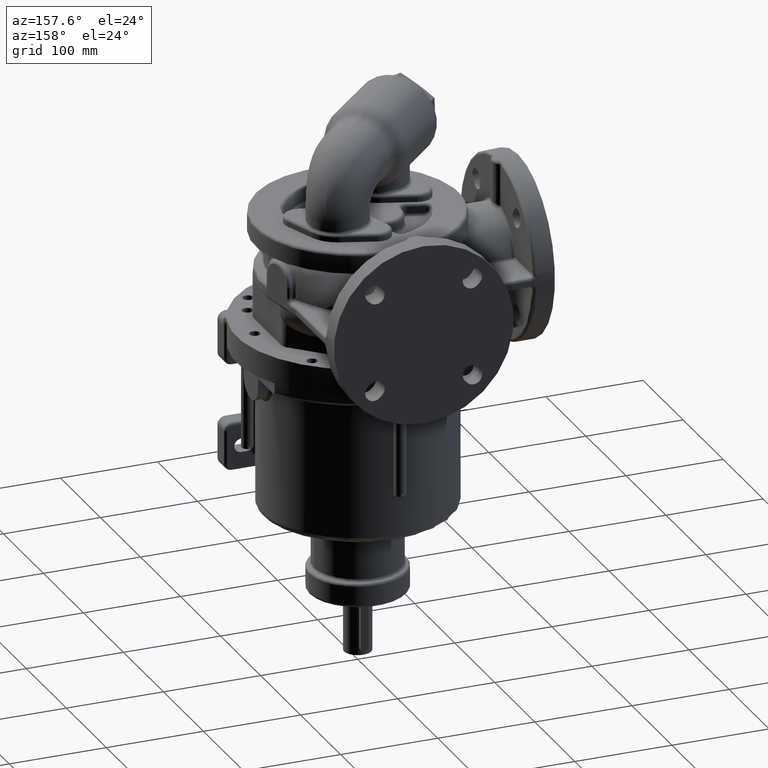
[diagram: clean part render]
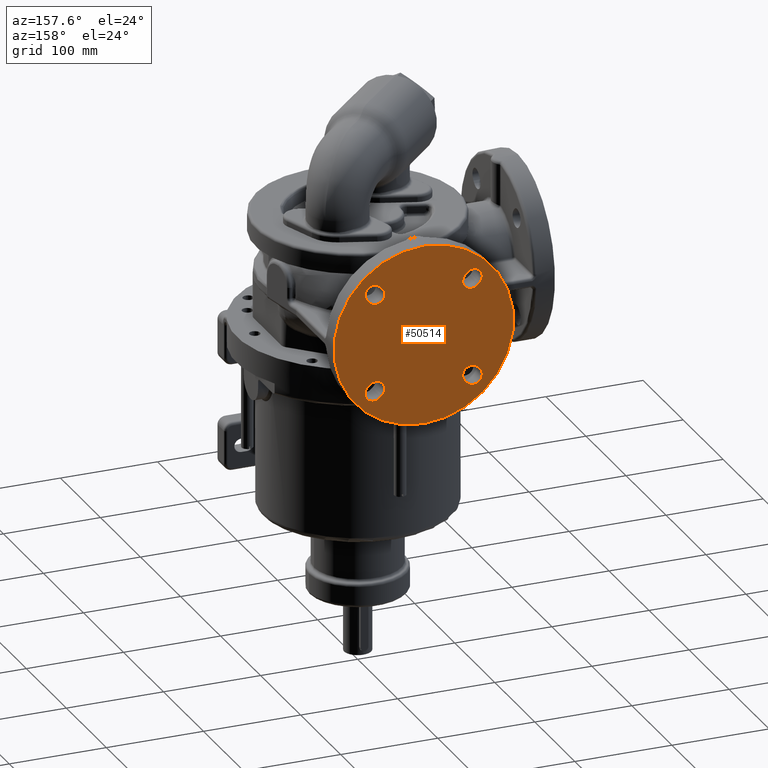
[diagram: same view with one face highlighted and labeled with its STEP entity id]
A machine part, auxiliary view. The second image highlights one B-rep face of the part: STEP entity #50514.
In plain terms, the highlighted planar face has unit normal (0, 1, 0).
Its self-contained STEP definition (entity closure, byte-faithful):
#12361=CARTESIAN_POINT('',(8.200559648315E-14,1.65E2,7.55E1));
#12362=DIRECTION('',(0.E0,-1.E0,0.E0));
#12363=DIRECTION('',(1.472316651400E-13,0.E0,1.E0));
#12364=AXIS2_PLACEMENT_3D('',#12361,#12362,#12363);
#12545=CARTESIAN_POINT('',(5.126524163602E1,1.65E2,1.267652416360E2));
#12546=DIRECTION('',(0.E0,1.E0,0.E0));
#12547=DIRECTION('',(-7.071067811866E-1,0.E0,7.071067811865E-1));
#12548=AXIS2_PLACEMENT_3D('',#12545,#12546,#12547);
#12550=DIRECTION('',(-7.071067811865E-1,0.E0,-7.071067811866E-1));
#12551=VECTOR('',#12550,3.E0);
#12552=CARTESIAN_POINT('',(5.762920266670E1,1.65E2,1.204012806053E2));
#12553=LINE('',#12552,#12551);
#12554=CARTESIAN_POINT('',(4.914392129247E1,1.65E2,1.246439212925E2));
#12555=DIRECTION('',(0.E0,1.E0,0.E0));
#12556=DIRECTION('',(7.071067811865E-1,0.E0,-7.071067811865E-1));
#12557=AXIS2_PLACEMENT_3D('',#12554,#12555,#12556);
#12559=DIRECTION('',(7.071067811865E-1,0.E0,7.071067811865E-1));
#12560=VECTOR('',#12559,3.E0);
#12561=CARTESIAN_POINT('',(4.277996026179E1,1.65E2,1.310078823231E2));
#12562=LINE('',#12561,#12560);
#12563=CARTESIAN_POINT('',(-5.126524163602E1,1.65E2,1.267652416360E2));
#12564=DIRECTION('',(0.E0,1.E0,0.E0));
#12565=DIRECTION('',(-7.071067811865E-1,0.E0,-7.071067811866E-1));
#12566=AXIS2_PLACEMENT_3D('',#12563,#12564,#12565);
#12568=DIRECTION('',(7.071067811866E-1,0.E0,-7.071067811865E-1));
#12569=VECTOR('',#12568,3.E0);
#12570=CARTESIAN_POINT('',(-4.490128060535E1,1.65E2,1.331292026667E2));
#12571=LINE('',#12570,#12569);
#12572=CARTESIAN_POINT('',(-4.914392129246E1,1.65E2,1.246439212925E2));
#12573=DIRECTION('',(0.E0,1.E0,0.E0));
#12574=DIRECTION('',(7.071067811865E-1,0.E0,7.071067811865E-1));
#12575=AXIS2_PLACEMENT_3D('',#12572,#12573,#12574);
#12577=DIRECTION('',(-7.071067811865E-1,0.E0,7.071067811865E-1));
#12578=VECTOR('',#12577,3.E0);
#12579=CARTESIAN_POINT('',(-5.550788232314E1,1.65E2,1.182799602618E2));
#12580=LINE('',#12579,#12578);
#12581=CARTESIAN_POINT('',(-5.126524163602E1,1.65E2,2.423475836398E1));
#12582=DIRECTION('',(0.E0,1.E0,0.E0));
#12583=DIRECTION('',(7.071067811866E-1,0.E0,-7.071067811865E-1));
#12584=AXIS2_PLACEMENT_3D('',#12581,#12582,#12583);
#12586=DIRECTION('',(7.071067811865E-1,0.E0,7.071067811865E-1));
#12587=VECTOR('',#12586,3.E0);
#12588=CARTESIAN_POINT('',(-5.762920266670E1,1.65E2,3.059871939465E1));
#12589=LINE('',#12588,#12587);
#12590=CARTESIAN_POINT('',(-4.914392129246E1,1.65E2,2.635607870753E1));
#12591=DIRECTION('',(0.E0,1.E0,0.E0));
#12592=DIRECTION('',(-7.071067811865E-1,0.E0,7.071067811865E-1));
#12593=AXIS2_PLACEMENT_3D('',#12590,#12591,#12592);
#12595=DIRECTION('',(-7.071067811865E-1,0.E0,-7.071067811865E-1));
#12596=VECTOR('',#12595,3.E0);
#12597=CARTESIAN_POINT('',(-4.277996026179E1,1.65E2,1.999211767686E1));
#12598=LINE('',#12597,#12596);
#12599=CARTESIAN_POINT('',(5.126524163602E1,1.65E2,2.423475836398E1));
#12600=DIRECTION('',(0.E0,1.E0,0.E0));
#12601=DIRECTION('',(7.071067811865E-1,0.E0,7.071067811865E-1));
#12602=AXIS2_PLACEMENT_3D('',#12599,#12600,#12601);
#12604=DIRECTION('',(-7.071067811865E-1,0.E0,7.071067811865E-1));
#12605=VECTOR('',#12604,3.E0);
#12606=CARTESIAN_POINT('',(4.490128060535E1,1.65E2,1.787079733330E1));
#12607=LINE('',#12606,#12605);
#12608=CARTESIAN_POINT('',(4.914392129247E1,1.65E2,2.635607870754E1));
#12609=DIRECTION('',(0.E0,1.E0,0.E0));
#12610=DIRECTION('',(-7.071067811865E-1,0.E0,-7.071067811865E-1));
#12611=AXIS2_PLACEMENT_3D('',#12608,#12609,#12610);
#12613=DIRECTION('',(7.071067811865E-1,0.E0,-7.071067811865E-1));
#12614=VECTOR('',#12613,3.E0);
#12615=CARTESIAN_POINT('',(5.550788232314E1,1.65E2,3.272003973821E1));
#12616=LINE('',#12615,#12614);
#12617=CARTESIAN_POINT('',(8.200559648315E-14,1.65E2,7.55E1));
#12618=DIRECTION('',(0.E0,-1.E0,0.E0));
#12619=DIRECTION('',(0.E0,0.E0,-1.E0));
#12620=AXIS2_PLACEMENT_3D('',#12617,#12618,#12619);
#21397=CARTESIAN_POINT('',(1.370093462193E-11,1.65E2,1.68E2));
#21398=CARTESIAN_POINT('',(4.864997072646E-14,1.65E2,-1.7E1));
#21399=VERTEX_POINT('',#21397);
#21400=VERTEX_POINT('',#21398);
#22128=CARTESIAN_POINT('',(4.490128060535E1,1.65E2,1.331292026667E2));
#22130=VERTEX_POINT('',#22128);
#22132=CARTESIAN_POINT('',(5.762920266670E1,1.65E2,1.204012806053E2));
#22134=VERTEX_POINT('',#22132);
#22136=CARTESIAN_POINT('',(5.550788232314E1,1.65E2,1.182799602618E2));
#22138=VERTEX_POINT('',#22136);
#22140=CARTESIAN_POINT('',(4.277996026179E1,1.65E2,1.310078823231E2));
#22142=VERTEX_POINT('',#22140);
#22144=CARTESIAN_POINT('',(-5.762920266670E1,1.65E2,1.204012806053E2));
#22146=VERTEX_POINT('',#22144);
#22148=CARTESIAN_POINT('',(-4.490128060535E1,1.65E2,1.331292026667E2));
#22150=VERTEX_POINT('',#22148);
#22152=CARTESIAN_POINT('',(-4.277996026179E1,1.65E2,1.310078823231E2));
#22154=VERTEX_POINT('',#22152);
#22156=CARTESIAN_POINT('',(-5.550788232314E1,1.65E2,1.182799602618E2));
#22158=VERTEX_POINT('',#22156);
#22160=CARTESIAN_POINT('',(-4.490128060535E1,1.65E2,1.787079733330E1));
#22162=VERTEX_POINT('',#22160);
#22164=CARTESIAN_POINT('',(-5.762920266670E1,1.65E2,3.059871939465E1));
#22166=VERTEX_POINT('',#22164);
#22168=CARTESIAN_POINT('',(-5.550788232314E1,1.65E2,3.272003973821E1));
#22170=VERTEX_POINT('',#22168);
#22172=CARTESIAN_POINT('',(-4.277996026179E1,1.65E2,1.999211767686E1));
#22174=VERTEX_POINT('',#22172);
#22176=CARTESIAN_POINT('',(5.762920266670E1,1.65E2,3.059871939465E1));
#22178=VERTEX_POINT('',#22176);
#22180=CARTESIAN_POINT('',(4.490128060535E1,1.65E2,1.787079733330E1));
#22182=VERTEX_POINT('',#22180);
#22184=CARTESIAN_POINT('',(4.277996026179E1,1.65E2,1.999211767686E1));
#22186=VERTEX_POINT('',#22184);
#22188=CARTESIAN_POINT('',(5.550788232314E1,1.65E2,3.272003973821E1));
#22190=VERTEX_POINT('',#22188);
#50464=CARTESIAN_POINT('',(0.E0,1.65E2,7.55E1));
#50465=DIRECTION('',(0.E0,1.E0,0.E0));
#50466=DIRECTION('',(0.E0,0.E0,-1.E0));
#50467=AXIS2_PLACEMENT_3D('',#50464,#50465,#50466);
#50468=PLANE('',#50467);
#50469=ORIENTED_EDGE('',*,*,#50441,.T.);
#50471=ORIENTED_EDGE('',*,*,#50470,.T.);
#50472=EDGE_LOOP('',(#50469,#50471));
#50473=FACE_OUTER_BOUND('',#50472,.F.);
#50475=ORIENTED_EDGE('',*,*,#50474,.T.);
#50477=ORIENTED_EDGE('',*,*,#50476,.T.);
#50479=ORIENTED_EDGE('',*,*,#50478,.T.);
#50481=ORIENTED_EDGE('',*,*,#50480,.T.);
#50482=EDGE_LOOP('',(#50475,#50477,#50479,#50481));
#50483=FACE_BOUND('',#50482,.F.);
#50485=ORIENTED_EDGE('',*,*,#50484,.T.);
#50487=ORIENTED_EDGE('',*,*,#50486,.T.);
#50489=ORIENTED_EDGE('',*,*,#50488,.T.);
#50491=ORIENTED_EDGE('',*,*,#50490,.T.);
#50492=EDGE_LOOP('',(#50485,#50487,#50489,#50491));
#50493=FACE_BOUND('',#50492,.F.);
#50495=ORIENTED_EDGE('',*,*,#50494,.T.);
#50497=ORIENTED_EDGE('',*,*,#50496,.T.);
#50499=ORIENTED_EDGE('',*,*,#50498,.T.);
#50501=ORIENTED_EDGE('',*,*,#50500,.T.);
#50502=EDGE_LOOP('',(#50495,#50497,#50499,#50501));
#50503=FACE_BOUND('',#50502,.F.);
#50505=ORIENTED_EDGE('',*,*,#50504,.T.);
#50507=ORIENTED_EDGE('',*,*,#50506,.T.);
#50509=ORIENTED_EDGE('',*,*,#50508,.T.);
#50511=ORIENTED_EDGE('',*,*,#50510,.T.);
#50512=EDGE_LOOP('',(#50505,#50507,#50509,#50511));
#50513=FACE_BOUND('',#50512,.F.);
#50514=ADVANCED_FACE('',(#50473,#50483,#50493,#50503,#50513),#50468,.T.);
#12365=CIRCLE('',#12364,9.25E1);
#12549=CIRCLE('',#12548,9.E0);
#12558=CIRCLE('',#12557,9.E0);
#12567=CIRCLE('',#12566,9.E0);
#12576=CIRCLE('',#12575,9.E0);
#12585=CIRCLE('',#12584,9.E0);
#12594=CIRCLE('',#12593,9.E0);
#12603=CIRCLE('',#12602,9.E0);
#12612=CIRCLE('',#12611,9.E0);
#12621=CIRCLE('',#12620,9.25E1);
#50441=EDGE_CURVE('',#21399,#21400,#12365,.T.);
#50470=EDGE_CURVE('',#21400,#21399,#12621,.T.);
#50474=EDGE_CURVE('',#22130,#22134,#12549,.T.);
#50476=EDGE_CURVE('',#22134,#22138,#12553,.T.);
#50478=EDGE_CURVE('',#22138,#22142,#12558,.T.);
#50480=EDGE_CURVE('',#22142,#22130,#12562,.T.);
#50484=EDGE_CURVE('',#22146,#22150,#12567,.T.);
#50486=EDGE_CURVE('',#22150,#22154,#12571,.T.);
#50488=EDGE_CURVE('',#22154,#22158,#12576,.T.);
#50490=EDGE_CURVE('',#22158,#22146,#12580,.T.);
#50494=EDGE_CURVE('',#22162,#22166,#12585,.T.);
#50496=EDGE_CURVE('',#22166,#22170,#12589,.T.);
#50498=EDGE_CURVE('',#22170,#22174,#12594,.T.);
#50500=EDGE_CURVE('',#22174,#22162,#12598,.T.);
#50504=EDGE_CURVE('',#22178,#22182,#12603,.T.);
#50506=EDGE_CURVE('',#22182,#22186,#12607,.T.);
#50508=EDGE_CURVE('',#22186,#22190,#12612,.T.);
#50510=EDGE_CURVE('',#22190,#22178,#12616,.T.);